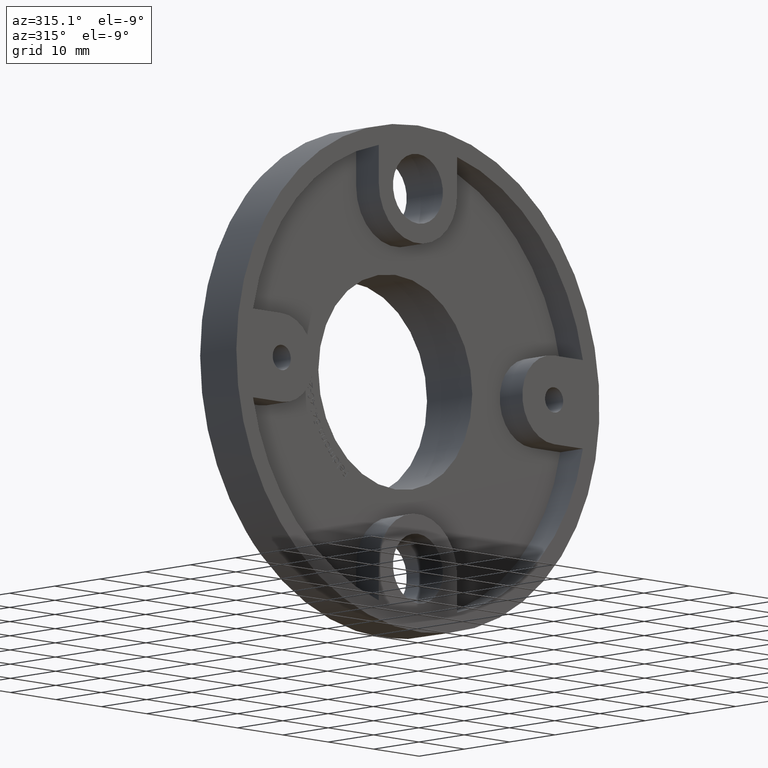
[diagram: clean part render]
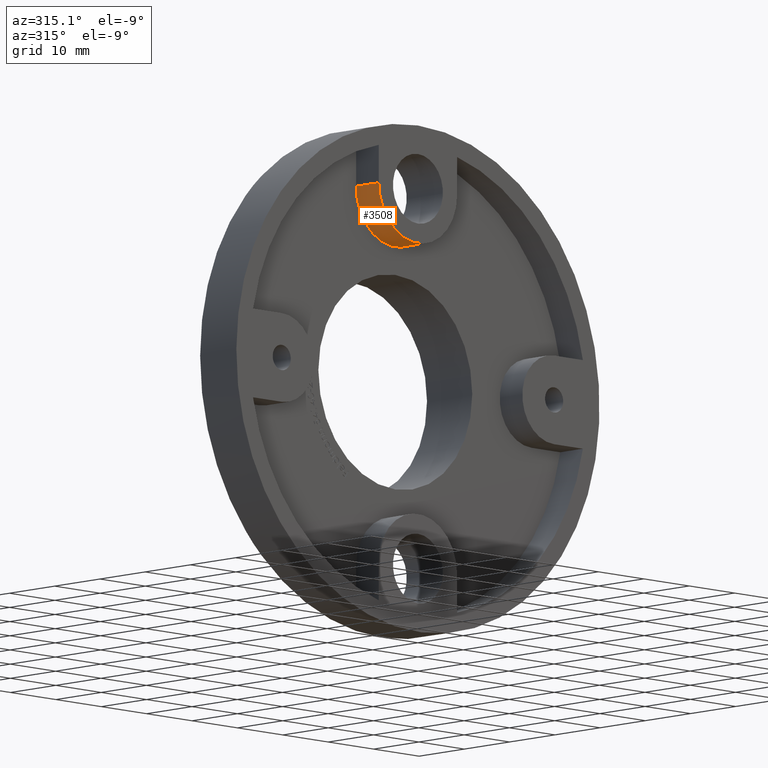
[diagram: same view with one face highlighted and labeled with its STEP entity id]
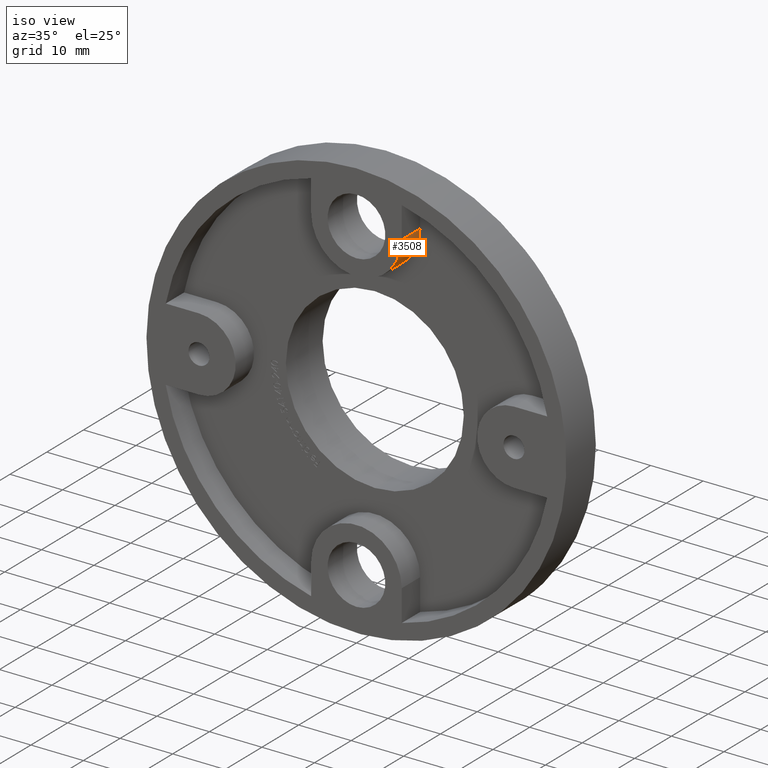
[diagram: same view with one face highlighted and labeled with its STEP entity id]
A machine part, auxiliary view. The second image highlights one B-rep face of the part: STEP entity #3508.
A second angle (iso view) of the same face is appended — the face is thin or edge-on in the first view.
In plain terms, the highlighted cylindrical surface (partial cylindrical patch) has radius 8.625 mm, axis along (-0, -1, -0).
Its self-contained STEP definition (entity closure, byte-faithful):
#316 = DIRECTION ( 'NONE',  ( -0.000000000000000000, -1.000000000000000000, -0.000000000000000000 ) ) ;
#431 = CIRCLE ( 'NONE', #11916, 8.625000000000000000 ) ;
#1164 = ORIENTED_EDGE ( 'NONE', *, *, #3914, .T. ) ;
#1368 = DIRECTION ( 'NONE',  ( -0.000000000000000000, -1.000000000000000000, -0.000000000000000000 ) ) ;
#1626 = LINE ( 'NONE', #2170, #4840 ) ;
#2170 = CARTESIAN_POINT ( 'NONE',  ( -8.625000000000005329, 5.000000000000000000, 30.00000000000000355 ) ) ;
#2824 = AXIS2_PLACEMENT_3D ( 'NONE', #10162, #10042, #12180 ) ;
#2931 = CARTESIAN_POINT ( 'NONE',  ( -8.625000000000005329, 0.000000000000000000, 30.00000000000000355 ) ) ;
#3376 = CARTESIAN_POINT ( 'NONE',  ( 8.624999999999998224, 5.000000000000000000, 30.00000000000000711 ) ) ;
#3508 = ADVANCED_FACE ( 'NONE', ( #7950 ), #6246, .T. ) ;
#3755 = DIRECTION ( 'NONE',  ( 0.000000000000000000, 0.000000000000000000, -1.000000000000000000 ) ) ;
#3914 = EDGE_CURVE ( 'NONE', #12094, #11053, #431, .T. ) ;
#4189 = VECTOR ( 'NONE', #1368, 1000.000000000000000 ) ;
#4689 = EDGE_LOOP ( 'NONE', ( #1164, #11548, #6183, #5549 ) ) ;
#4744 = CARTESIAN_POINT ( 'NONE',  ( -8.625000000000005329, 5.000000000000000000, 30.00000000000000355 ) ) ;
#4840 = VECTOR ( 'NONE', #316, 1000.000000000000000 ) ;
#5549 = ORIENTED_EDGE ( 'NONE', *, *, #7578, .T. ) ;
#5769 = CARTESIAN_POINT ( 'NONE',  ( -7.347880794884118356E-15, 0.000000000000000000, 30.00000000000000000 ) ) ;
#5805 = DIRECTION ( 'NONE',  ( -0.000000000000000000, 1.000000000000000000, -0.000000000000000000 ) ) ;
#6019 = CARTESIAN_POINT ( 'NONE',  ( 8.624999999999998224, 0.000000000000000000, 30.00000000000000711 ) ) ;
#6183 = ORIENTED_EDGE ( 'NONE', *, *, #12093, .F. ) ;
#6246 = CYLINDRICAL_SURFACE ( 'NONE', #2824, 8.625000000000000000 ) ;
#7413 = AXIS2_PLACEMENT_3D ( 'NONE', #7970, #8954, #8913 ) ;
#7441 = LINE ( 'NONE', #8277, #4189 ) ;
#7578 = EDGE_CURVE ( 'NONE', #8939, #12094, #7441, .T. ) ;
#7753 = CIRCLE ( 'NONE', #7413, 8.625000000000000000 ) ;
#7950 = FACE_OUTER_BOUND ( 'NONE', #4689, .T. ) ;
#7970 = CARTESIAN_POINT ( 'NONE',  ( -7.347880794884118356E-15, 5.000000000000000000, 30.00000000000000000 ) ) ;
#8277 = CARTESIAN_POINT ( 'NONE',  ( 8.624999999999998224, 5.000000000000000000, 30.00000000000000711 ) ) ;
#8913 = DIRECTION ( 'NONE',  ( 0.000000000000000000, 0.000000000000000000, -1.000000000000000000 ) ) ;
#8939 = VERTEX_POINT ( 'NONE', #3376 ) ;
#8954 = DIRECTION ( 'NONE',  ( -0.000000000000000000, 1.000000000000000000, -0.000000000000000000 ) ) ;
#9869 = VERTEX_POINT ( 'NONE', #4744 ) ;
#10042 = DIRECTION ( 'NONE',  ( -0.000000000000000000, -1.000000000000000000, -0.000000000000000000 ) ) ;
#10162 = CARTESIAN_POINT ( 'NONE',  ( -7.347880794884118356E-15, 5.000000000000000000, 30.00000000000000000 ) ) ;
#11053 = VERTEX_POINT ( 'NONE', #2931 ) ;
#11534 = EDGE_CURVE ( 'NONE', #9869, #11053, #1626, .T. ) ;
#11548 = ORIENTED_EDGE ( 'NONE', *, *, #11534, .F. ) ;
#11916 = AXIS2_PLACEMENT_3D ( 'NONE', #5769, #5805, #3755 ) ;
#12093 = EDGE_CURVE ( 'NONE', #8939, #9869, #7753, .T. ) ;
#12094 = VERTEX_POINT ( 'NONE', #6019 ) ;
#12180 = DIRECTION ( 'NONE',  ( 0.000000000000000000, 0.000000000000000000, -1.000000000000000000 ) ) ;